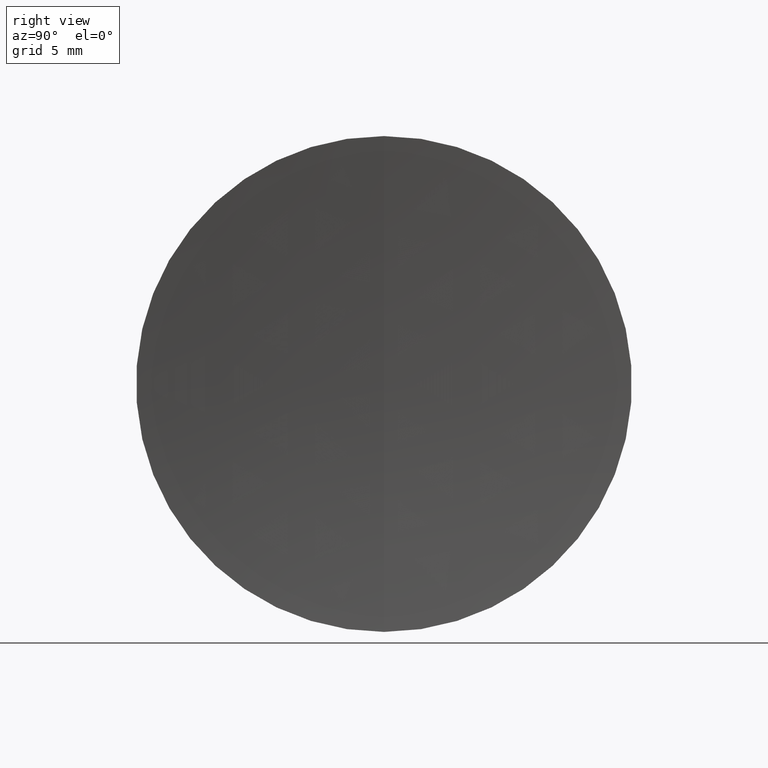
[diagram: clean part render]
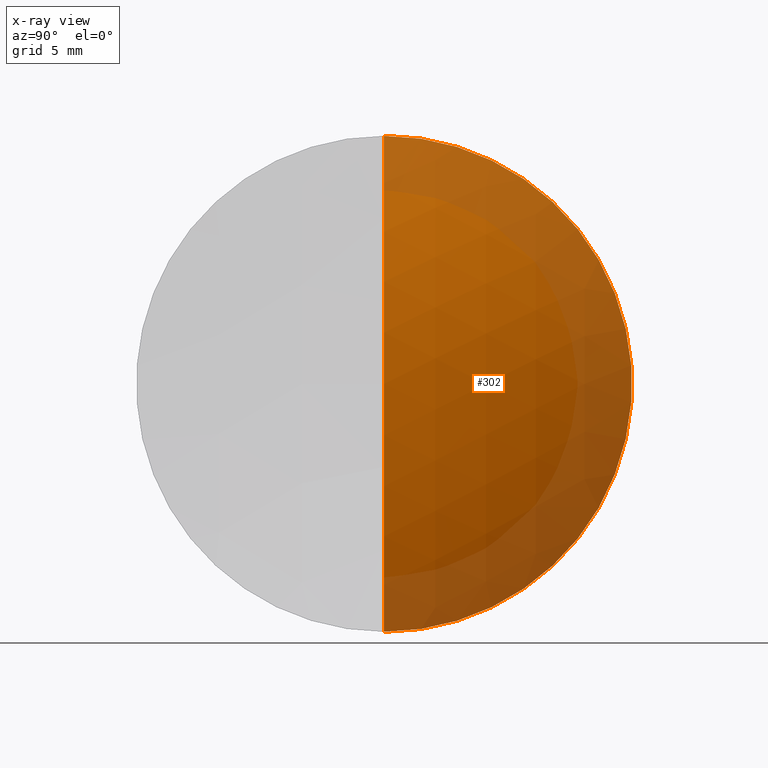
[diagram: x-ray — body ghosted, one internal face saturated and labeled with its STEP entity id]
A machine part, right view, then the same camera in x-ray: the body is ghosted and one INTERNAL B-rep face — a face not visible from any outside direction — is saturated and labeled: STEP entity #302.
In plain terms, the highlighted spherical surface has radius 28.12 mm.
Its self-contained STEP definition (entity closure, byte-faithful):
#9 = DIRECTION ( 'NONE',  ( 0.0000000000000000000, 0.0000000000000000000, -1.000000000000000000 ) ) ;
#41 = CARTESIAN_POINT ( 'NONE',  ( 13.38661921602329700, 0.0000000000000000000, -1.021629593318478500E-014 ) ) ;
#62 = FACE_OUTER_BOUND ( 'NONE', #125, .T. ) ;
#64 = CARTESIAN_POINT ( 'NONE',  ( 38.47534975385649100, 0.0000000000000000000, 0.0000000000000000000 ) ) ;
#71 = EDGE_CURVE ( 'NONE', #241, #231, #347, .T. ) ;
#75 = EDGE_CURVE ( 'NONE', #299, #231, #156, .T. ) ;
#88 = CARTESIAN_POINT ( 'NONE',  ( 13.38661921602329700, 0.0000000000000000000, -1.021629593318478500E-014 ) ) ;
#125 = EDGE_LOOP ( 'NONE', ( #264, #230, #342 ) ) ;
#126 = DIRECTION ( 'NONE',  ( 0.0000000000000000000, -1.224646799147353200E-016, 1.000000000000000000 ) ) ;
#128 = DIRECTION ( 'NONE',  ( -0.0000000000000000000, 1.000000000000000000, 1.224646799147353200E-016 ) ) ;
#146 = AXIS2_PLACEMENT_3D ( 'NONE', #64, #246, #179 ) ;
#156 = CIRCLE ( 'NONE', #228, 28.12000000000006800 ) ;
#161 = DIRECTION ( 'NONE',  ( 0.0000000000000000000, 1.000000000000000000, 0.0000000000000000000 ) ) ;
#179 = DIRECTION ( 'NONE',  ( 0.0000000000000000000, 0.0000000000000000000, 1.000000000000000000 ) ) ;
#183 = CARTESIAN_POINT ( 'NONE',  ( 13.38661921602329700, 0.0000000000000000000, -1.021629593318478500E-014 ) ) ;
#185 = AXIS2_PLACEMENT_3D ( 'NONE', #41, #242, #9 ) ;
#191 = CARTESIAN_POINT ( 'NONE',  ( 41.50661921602336700, 0.0000000000000000000, -8.494442533583603000E-015 ) ) ;
#228 = AXIS2_PLACEMENT_3D ( 'NONE', #88, #128, #126 ) ;
#230 = ORIENTED_EDGE ( 'NONE', *, *, #75, .T. ) ;
#231 = VERTEX_POINT ( 'NONE', #251 ) ;
#241 = VERTEX_POINT ( 'NONE', #259 ) ;
#242 = DIRECTION ( 'NONE',  ( 0.0000000000000000000, -1.000000000000000000, 0.0000000000000000000 ) ) ;
#246 = DIRECTION ( 'NONE',  ( -1.000000000000000000, -0.0000000000000000000, -0.0000000000000000000 ) ) ;
#251 = CARTESIAN_POINT ( 'NONE',  ( 38.47534975385649100, 1.555301434917138000E-015, -12.69999999999999400 ) ) ;
#259 = CARTESIAN_POINT ( 'NONE',  ( 38.47534975385649100, 0.0000000000000000000, 12.69999999999999400 ) ) ;
#264 = ORIENTED_EDGE ( 'NONE', *, *, #277, .F. ) ;
#277 = EDGE_CURVE ( 'NONE', #299, #241, #320, .T. ) ;
#286 = SPHERICAL_SURFACE ( 'NONE', #309, 28.12000000000006800 ) ;
#299 = VERTEX_POINT ( 'NONE', #191 ) ;
#302 = ADVANCED_FACE ( 'NONE', ( #62 ), #286, .T. ) ;
#309 = AXIS2_PLACEMENT_3D ( 'NONE', #183, #161, #318 ) ;
#318 = DIRECTION ( 'NONE',  ( 0.0000000000000000000, 0.0000000000000000000, 1.000000000000000000 ) ) ;
#320 = CIRCLE ( 'NONE', #185, 28.12000000000006800 ) ;
#342 = ORIENTED_EDGE ( 'NONE', *, *, #71, .F. ) ;
#347 = CIRCLE ( 'NONE', #146, 12.69999999999999400 ) ;